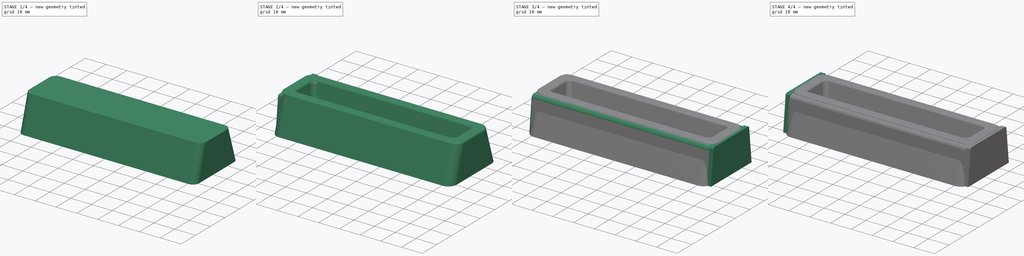
[diagram: build sequence overview — one tinted view per stage of 4, left to right]
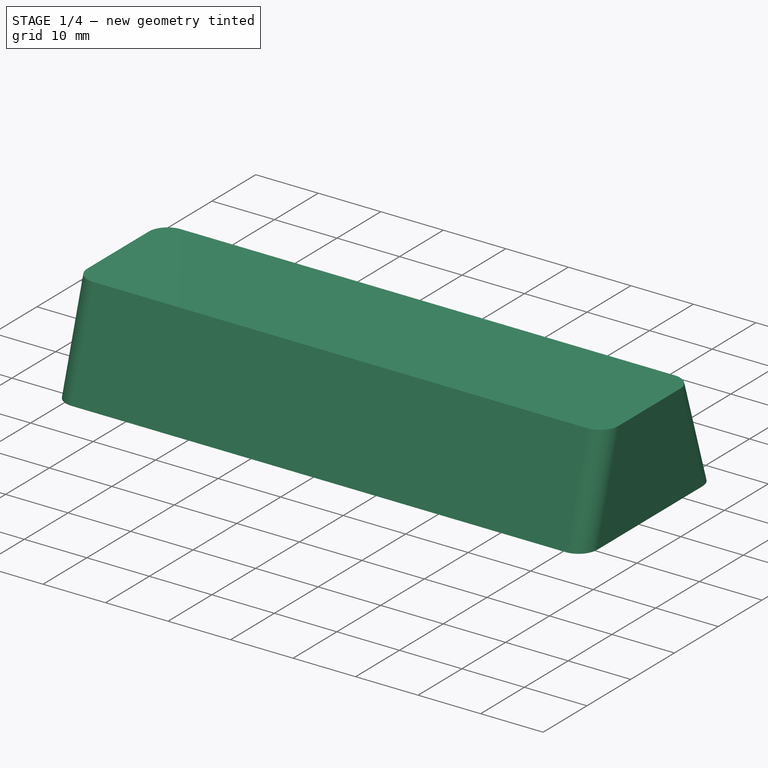
[diagram: stage 1 of 4 — iso view after this stage's code; geometry added in this stage tinted green]
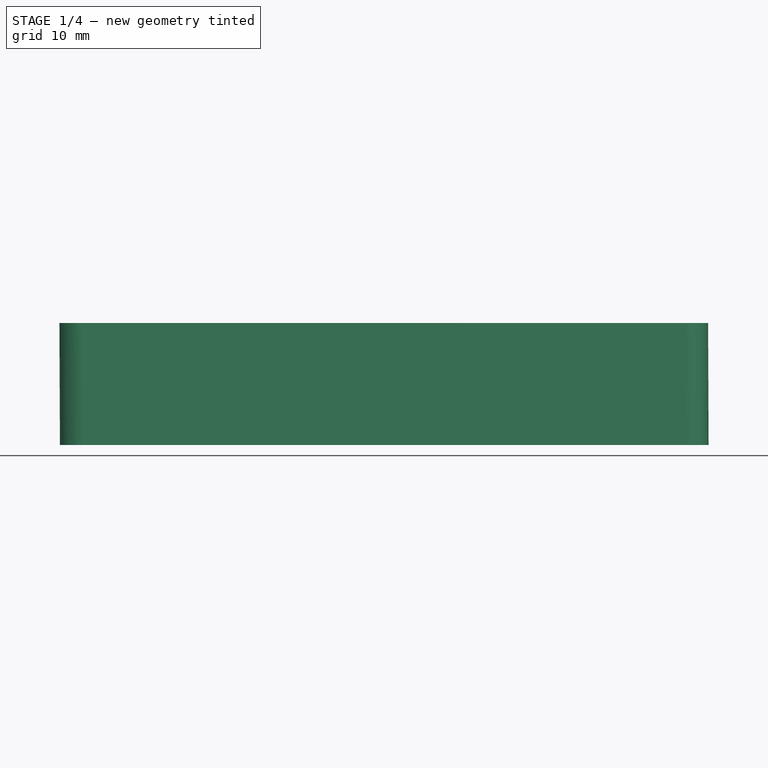
[diagram: stage 1 of 4 — front view after this stage's code; geometry added in this stage tinted green]
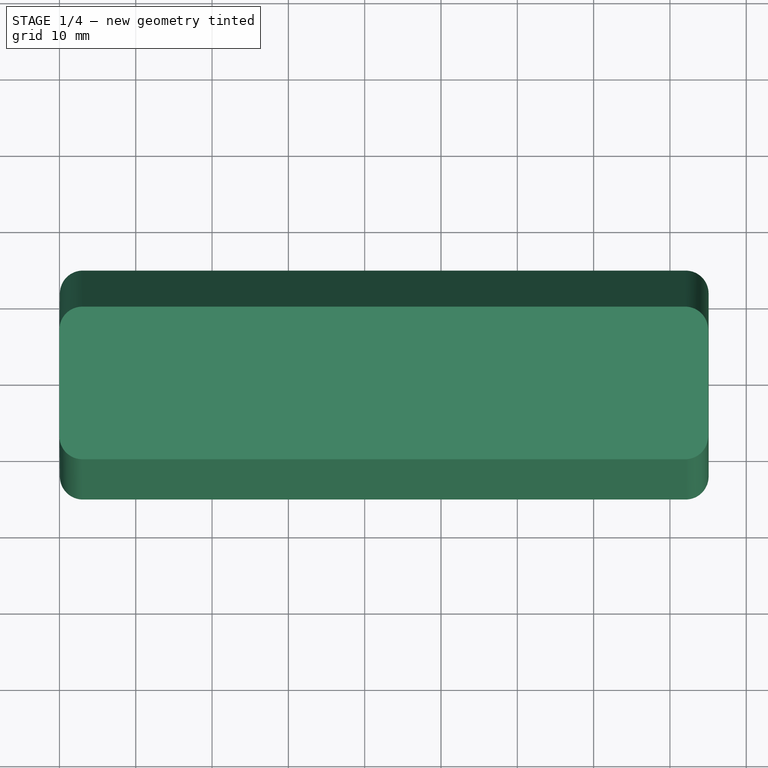
[diagram: stage 1 of 4 — top view after this stage's code; geometry added in this stage tinted green]
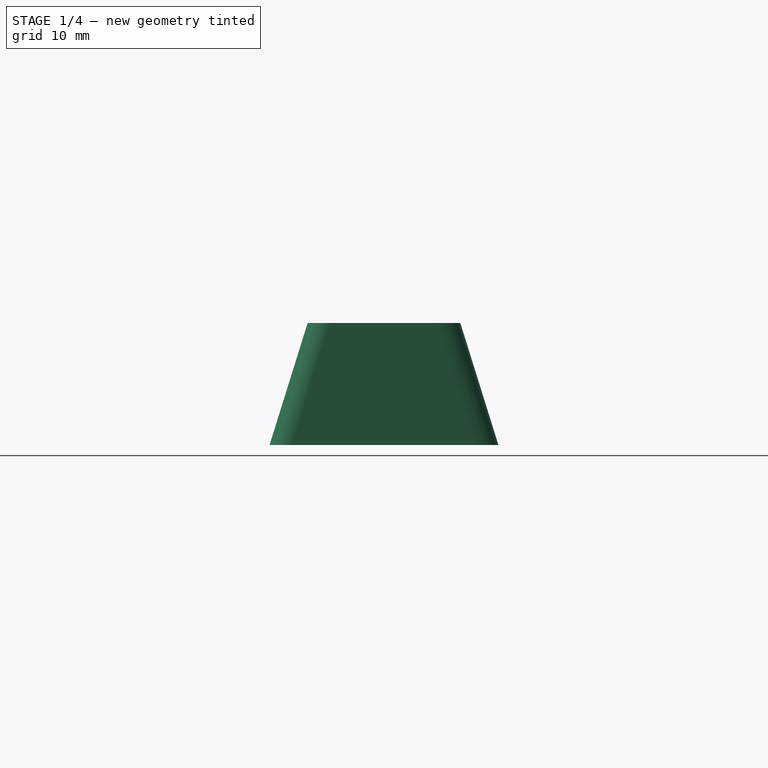
[diagram: stage 1 of 4 — right view after this stage's code; geometry added in this stage tinted green]
FCSTD DOCUMENT  (FreeCAD 0.20R29410 (Git))
Label: Trays
License: All rights reserved
LicenseURL: http://en.wikipedia.org/wiki/All_rights_reserved
objects: Sketcher::SketchObject×6, PartDesign::Body×4, PartDesign::Pad×2, Part::Thickness×2, PartDesign::AdditiveLoft×2, Part::Box×1, Part::FeaturePython×1, Part::Compound×1, TechDraw::DrawSVGTemplate×1, Part::Cut×1, TechDraw::DrawViewPart×1, TechDraw::DrawPage×1
note: 24 computed .brp shape members not serialized (recipe doc carries the construction recipe); baked Part::Feature solids carry a one-line shape summary decoded from their .brp

FEATURE [TechDraw::DrawSVGTemplate] Template
  Height = 210
  Orientation = 1
  Width = 297
FEATURE [Sketcher::SketchObject] Sketch002
  FullyConstrained = false
  MapMode = 5
  Support = -> [XY_Plane002]
  sketch-geometry (16):
    g0: LineSegment StartX=3.06449 StartY=-15 StartZ=0 EndX=82.0645 EndY=-15 EndZ=0
    g1: LineSegment StartX=85.0645 StartY=-12 StartZ=0 EndX=85.0645 EndY=12 EndZ=0
    g2: LineSegment StartX=82.0645 StartY=15 StartZ=0 EndX=3.06449 EndY=15 EndZ=0
    g3: LineSegment StartX=0.0644855 StartY=12 StartZ=0 EndX=0.0644855 EndY=-12 EndZ=0
    g4: ArcOfCircle CenterX=3.06449 CenterY=12 CenterZ=0 NormalX=0 NormalY=0 NormalZ=1 AngleXU=0 Radius=3 StartAngle=1.5708 EndAngle=3.14159
    g5: GeomPoint X=0.0644855 Y=15 Z=0
    g6: ArcOfCircle CenterX=82.0645 CenterY=12 CenterZ=0 NormalX=0 NormalY=0 NormalZ=1 AngleXU=0 Radius=3 StartAngle=0 EndAngle=1.5708
    g7: GeomPoint X=85.0645 Y=15 Z=0
    g8: ArcOfCircle CenterX=82.0645 CenterY=-12 CenterZ=0 NormalX=0 NormalY=0 NormalZ=1 AngleXU=0 Radius=3 StartAngle=4.71239 EndAngle=6.28319
    g9: GeomPoint X=85.0645 Y=-15 Z=0
    g10: ArcOfCircle CenterX=3.06449 CenterY=-12 CenterZ=0 NormalX=0 NormalY=0 NormalZ=1 AngleXU=0 Radius=3 StartAngle=3.14159 EndAngle=4.71239
    g11: GeomPoint X=0.0644855 Y=-15 Z=0
    g12: LineSegment StartX=3.06449 StartY=15 StartZ=0 EndX=0 EndY=15 EndZ=0
    g13: LineSegment StartX=3.06449 StartY=-15 StartZ=0 EndX=0 EndY=-15 EndZ=0
    g14: LineSegment StartX=0 StartY=-15 StartZ=0 EndX=0 EndY=0 EndZ=0
    g15: LineSegment StartX=0 StartY=0 StartZ=0 EndX=0 EndY=15 EndZ=0
  constraints (37):
    c: Horizontal(g0)
    c: Horizontal(g2)
    c: Vertical(g1)
    c: Vertical(g3)
    c: PointOnObject(g5,g3)
    c: PointOnObject(g5,g2)
    c: Tangent(g3,g4) = -1.5708
    c: Tangent(g2,g4) = -1.5708
    c: PointOnObject(g7,g2)
    c: PointOnObject(g7,g1)
    c: Tangent(g2,g6) = -1.5708
    c: Tangent(g1,g6) = -1.5708
    c: PointOnObject(g9,g1)
    c: PointOnObject(g9,g0)
    c: Tangent(g1,g8) = -1.5708
    c: Tangent(g0,g8) = -1.5708
    c: PointOnObject(g11,g0)
    c: PointOnObject(g11,g3)
    c: Tangent(g0,g10) = -1.5708
    c: Tangent(g3,g10) = -1.5708
    c: Equal(g10,g4)
    c: Equal(g4,g6)
    c: Equal(g6,g8)
    c: DistanceX(g3,g1) = 85
    c: Coincident(g12,g2)
    c: PointOnObject(g12,g-2)
    c: Horizontal(g12)
    c: Coincident(g13,g0)
    c: PointOnObject(g13,g-2)
    c: Tangent(g13,g10)
    c: Coincident(g14,g13)
    c: Coincident(g14,g-1)
    c: Coincident(g15,g14)
    c: Coincident(g15,g12)
    c: Equal(g15,g14)
    c: Radius(g4) = 3
    c: DistanceY(g0,g2) = 30
FEATURE [Sketcher::SketchObject] Sketch003
  AttachmentOffset = pos=(0,0,16) rot=(0,0,1;0rad)
  FullyConstrained = true
  MapMode = 5
  Placement = pos=(0,0,16) rot=(0,0,1;0rad)
  Support = -> [XY_Plane002]
  sketch-geometry (14):
    g0: LineSegment StartX=3 StartY=10 StartZ=0 EndX=82 EndY=10 EndZ=0
    g1: LineSegment StartX=85 StartY=7 StartZ=0 EndX=85 EndY=-7 EndZ=0
    g2: LineSegment StartX=82 StartY=-10 StartZ=0 EndX=3 EndY=-10 EndZ=0
    g3: LineSegment StartX=0 StartY=-7 StartZ=0 EndX=0 EndY=7 EndZ=0
    g4: LineSegment StartX=0 StartY=0 StartZ=0 EndX=0 EndY=10 EndZ=0
    g5: LineSegment StartX=0 StartY=0 StartZ=0 EndX=0 EndY=-10 EndZ=0
    g6: ArcOfCircle CenterX=3 CenterY=7 CenterZ=0 NormalX=0 NormalY=0 NormalZ=1 AngleXU=0 Radius=3 StartAngle=1.5708 EndAngle=3.14159
    g7: GeomPoint X=0 Y=10 Z=0
    g8: ArcOfCircle CenterX=82 CenterY=7 CenterZ=0 NormalX=0 NormalY=0 NormalZ=1 AngleXU=0 Radius=3 StartAngle=0 EndAngle=1.5708
    g9: GeomPoint X=85 Y=10 Z=0
    g10: ArcOfCircle CenterX=82 CenterY=-7 CenterZ=0 NormalX=0 NormalY=0 NormalZ=1 AngleXU=0 Radius=3 StartAngle=4.71239 EndAngle=6.28319
    g11: GeomPoint X=85 Y=-10 Z=0
    g12: ArcOfCircle CenterX=3 CenterY=-7 CenterZ=0 NormalX=0 NormalY=0 NormalZ=1 AngleXU=0 Radius=3 StartAngle=3.14159 EndAngle=4.71239
    g13: GeomPoint X=0 Y=-10 Z=0
  constraints (32):
    c: Horizontal(g0)
    c: Horizontal(g2)
    c: Vertical(g1)
    c: Vertical(g3)
    c: PointOnObject(g7,g-2)
    c: Coincident(g4,g-1)
    c: Coincident(g4,g7)
    c: Coincident(g5,g4)
    c: Coincident(g5,g13)
    c: DistanceY(g13,g4) = 10
    c: DistanceY(g4,g7) = 10
    c: DistanceX(g7,g9) = 85
    c: PointOnObject(g7,g3)
    c: PointOnObject(g7,g0)
    c: Tangent(g3,g6) = 1.5708
    c: Tangent(g0,g6) = 1.5708
    c: PointOnObject(g9,g0)
    c: PointOnObject(g9,g1)
    c: Tangent(g0,g8) = 1.5708
    c: Tangent(g1,g8) = 1.5708
    c: PointOnObject(g11,g1)
    c: PointOnObject(g11,g2)
    c: Tangent(g1,g10) = 1.5708
    c: Tangent(g2,g10) = 1.5708
    c: PointOnObject(g13,g2)
    c: PointOnObject(g13,g3)
    c: Tangent(g2,g12) = 1.5708
    c: Tangent(g3,g12) = 1.5708
    c: Equal(g12,g6)
    c: Equal(g6,g8)
    c: Equal(g8,g10)
    c: Radius(g6) = 3
FEATURE [PartDesign::AdditiveLoft] AdditiveLoft
  Closed = false
  Profile = -> Sketch002
  Ruled = false
  Sections = -> [Sketch003]
FEATURE [PartDesign::Body] Body002  label="Tray body"
  Group = -> [Sketch002,Sketch003,AdditiveLoft]
  Origin = -> Origin002
  Tip = -> AdditiveLoft
FEATURE [Sketcher::SketchObject] Sketch004
  AttachmentOffset = pos=(0,0,16) rot=(0,0,1;0rad)
  FullyConstrained = true
  MapMode = 5
  Placement = pos=(0,0,16) rot=(0,0,1;0rad)
  Support = -> [XY_Plane003]
  sketch-geometry (16):
    g0: LineSegment StartX=6 StartY=7.5 StartZ=0 EndX=79 EndY=7.5 EndZ=0
    g1: LineSegment StartX=82 StartY=4.5 StartZ=0 EndX=82 EndY=-4.5 EndZ=0
    g2: LineSegment StartX=79 StartY=-7.5 StartZ=0 EndX=6 EndY=-7.5 EndZ=0
    g3: LineSegment StartX=3 StartY=-4.5 StartZ=0 EndX=3 EndY=4.5 EndZ=0
    g4: LineSegment StartX=0 StartY=0 StartZ=0 EndX=0 EndY=7.5 EndZ=0
    g5: LineSegment StartX=0 StartY=0 StartZ=0 EndX=0 EndY=-7.5 EndZ=0
    g6: LineSegment StartX=3 StartY=-7.5 StartZ=0 EndX=0 EndY=-7.5 EndZ=0
    g7: LineSegment StartX=3 StartY=7.5 StartZ=0 EndX=0 EndY=7.5 EndZ=0
    g8: ArcOfCircle CenterX=6 CenterY=4.5 CenterZ=0 NormalX=0 NormalY=0 NormalZ=1 AngleXU=0 Radius=3 StartAngle=1.5708 EndAngle=3.14159
    g9: GeomPoint X=3 Y=7.5 Z=0
    g10: ArcOfCircle CenterX=6 CenterY=-4.5 CenterZ=0 NormalX=0 NormalY=0 NormalZ=1 AngleXU=0 Radius=3 StartAngle=3.14159 EndAngle=4.71239
    g11: GeomPoint X=3 Y=-7.5 Z=0
    g12: ArcOfCircle CenterX=79 CenterY=-4.5 CenterZ=0 NormalX=0 NormalY=0 NormalZ=1 AngleXU=0 Radius=3 StartAngle=4.71239 EndAngle=6.28319
    g13: GeomPoint X=82 Y=-7.5 Z=0
    g14: ArcOfCircle CenterX=79 CenterY=4.5 CenterZ=0 NormalX=0 NormalY=0 NormalZ=1 AngleXU=0 Radius=3 StartAngle=0 EndAngle=1.5708
    g15: GeomPoint X=82 Y=7.5 Z=0
  constraints (38):
    c: Horizontal(g0)
    c: Horizontal(g2)
    c: Vertical(g1)
    c: Vertical(g3)
    c: Coincident(g4,g-1)
    c: PointOnObject(g4,g-2)
    c: Coincident(g5,g4)
    c: PointOnObject(g5,g-2)
    c: Coincident(g6,g11)
    c: Coincident(g6,g5)
    c: Horizontal(g6)
    c: Coincident(g7,g9)
    c: Coincident(g7,g4)
    c: Horizontal(g7)
    c: Equal(g4,g5)
    c: DistanceX(g7,g7) = 3
    c: DistanceX(g9,g15) = 79
    c: PointOnObject(g9,g3)
    c: PointOnObject(g9,g0)
    c: Tangent(g3,g8) = 1.5708
    c: Tangent(g0,g8) = 1.5708
    c: PointOnObject(g11,g2)
    c: PointOnObject(g11,g3)
    c: Tangent(g2,g10) = 1.5708
    c: Tangent(g3,g10) = 1.5708
    c: PointOnObject(g13,g2)
    c: PointOnObject(g13,g1)
    c: Tangent(g2,g12) = 1.5708
    c: Tangent(g1,g12) = 1.5708
    c: PointOnObject(g15,g1)
    c: PointOnObject(g15,g0)
    c: Tangent(g1,g14) = 1.5708
    c: Tangent(g0,g14) = 1.5708
    c: Equal(g8,g14)
    c: Equal(g14,g12)
    c: Equal(g12,g10)
    c: Radius(g8) = 3
    c: DistanceY(g5,g4) = 15
FEATURE [Sketcher::SketchObject] Sketch005
  AttachmentOffset = pos=(0,0,4) rot=(0,0,1;0rad)
  FullyConstrained = false
  MapMode = 5
  Placement = pos=(0,0,4) rot=(0,0,1;0rad)
  Support = -> [XY_Plane003]
  sketch-geometry (16):
    g0: LineSegment StartX=8 StartY=4.5 StartZ=0 EndX=77.7539 EndY=4.5 EndZ=0
    g1: LineSegment StartX=80 StartY=2.25388 StartZ=0 EndX=80 EndY=-2.29026 EndZ=0
    g2: LineSegment StartX=77.7903 StartY=-4.5 StartZ=0 EndX=8 EndY=-4.5 EndZ=0
    g3: LineSegment StartX=5 StartY=-1.5 StartZ=0 EndX=5 EndY=1.5 EndZ=0
    g4: LineSegment StartX=5 StartY=4.5 StartZ=0 EndX=0 EndY=4.5 EndZ=0
    g5: LineSegment StartX=5 StartY=-4.5 StartZ=0 EndX=0 EndY=-4.5 EndZ=0
    g6: LineSegment StartX=0 StartY=-4.5 StartZ=0 EndX=0 EndY=0 EndZ=0
    g7: LineSegment StartX=0 StartY=4.5 StartZ=0 EndX=0 EndY=0 EndZ=0
    g8: ArcOfCircle CenterX=8 CenterY=1.5 CenterZ=0 NormalX=0 NormalY=0 NormalZ=1 AngleXU=0 Radius=3 StartAngle=1.5708 EndAngle=3.14159
    g9: GeomPoint X=5 Y=4.5 Z=0
    g10: ArcOfCircle CenterX=8 CenterY=-1.5 CenterZ=0 NormalX=0 NormalY=0 NormalZ=1 AngleXU=0 Radius=3 StartAngle=3.14159 EndAngle=4.71239
    g11: GeomPoint X=5 Y=-4.5 Z=0
    g12: ArcOfCircle CenterX=77.7903 CenterY=-2.29026 CenterZ=0 NormalX=0 NormalY=0 NormalZ=1 AngleXU=0 Radius=2.20974 StartAngle=4.71239 EndAngle=6.28319
    g13: GeomPoint X=80 Y=-4.5 Z=0
    g14: ArcOfCircle CenterX=77.7539 CenterY=2.25388 CenterZ=0 NormalX=0 NormalY=0 NormalZ=1 AngleXU=0 Radius=2.24612 StartAngle=0 EndAngle=1.5708
    g15: GeomPoint X=80 Y=4.5 Z=0
  constraints (36):
    c: Horizontal(g0)
    c: Horizontal(g2)
    c: Vertical(g1)
    c: Vertical(g3)
    c: Coincident(g4,g9)
    c: PointOnObject(g4,g-2)
    c: Horizontal(g4)
    c: Coincident(g5,g11)
    c: PointOnObject(g5,g-2)
    c: Horizontal(g5)
    c: Coincident(g6,g5)
    c: Coincident(g6,g-1)
    c: Coincident(g7,g4)
    c: Coincident(g7,g6)
    c: Equal(g7,g6)
    c: DistanceY(g5,g4) = 9
    c: PointOnObject(g9,g3)
    c: PointOnObject(g9,g0)
    c: Tangent(g3,g8) = 1.5708
    c: Tangent(g0,g8) = 1.5708
    c: PointOnObject(g11,g2)
    c: PointOnObject(g11,g3)
    c: Tangent(g2,g10) = 1.5708
    c: Tangent(g3,g10) = 1.5708
    c: PointOnObject(g13,g2)
    c: PointOnObject(g13,g1)
    c: Tangent(g2,g12) = 1.5708
    c: Tangent(g1,g12) = 1.5708
    c: PointOnObject(g15,g1)
    c: PointOnObject(g15,g0)
    c: Tangent(g1,g14) = 1.5708
    c: Tangent(g0,g14) = 1.5708
    c: Equal(g10,g8)
    c: Radius(g10) = 3
    c: DistanceX(g4,g4) = 5
    c: DistanceX(g4,g15) = 75
FEATURE [PartDesign::AdditiveLoft] AdditiveLoft001
  Closed = false
  Profile = -> Sketch004
  Ruled = false
  Sections = -> [Sketch005]
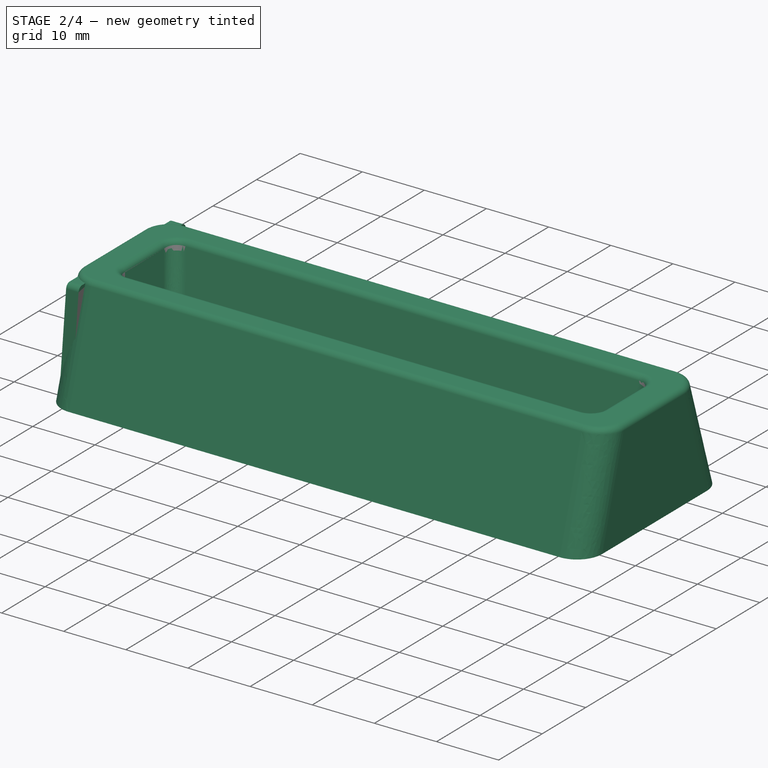
[diagram: stage 2 of 4 — iso view after this stage's code; geometry added in this stage tinted green]
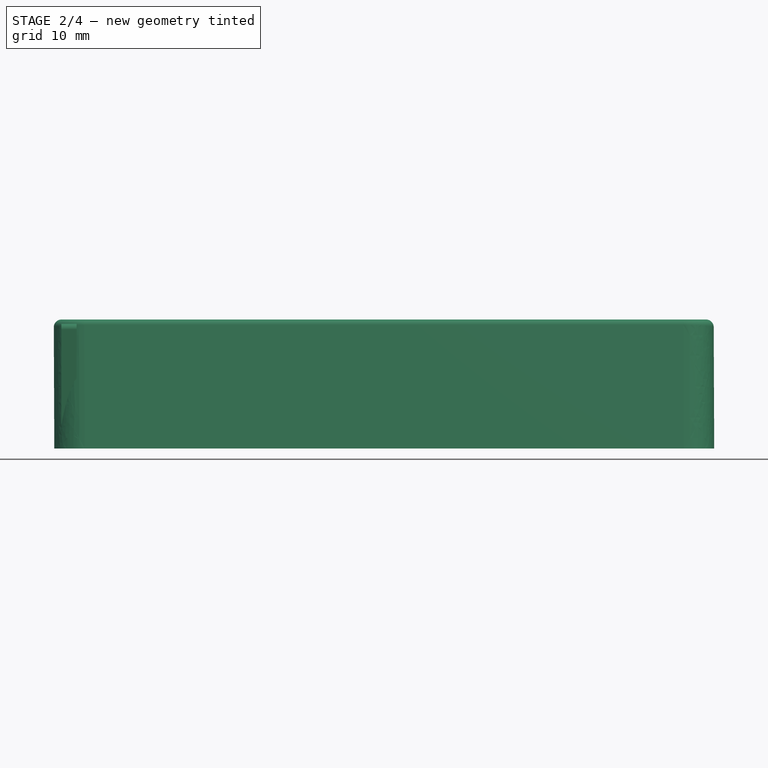
[diagram: stage 2 of 4 — front view after this stage's code; geometry added in this stage tinted green]
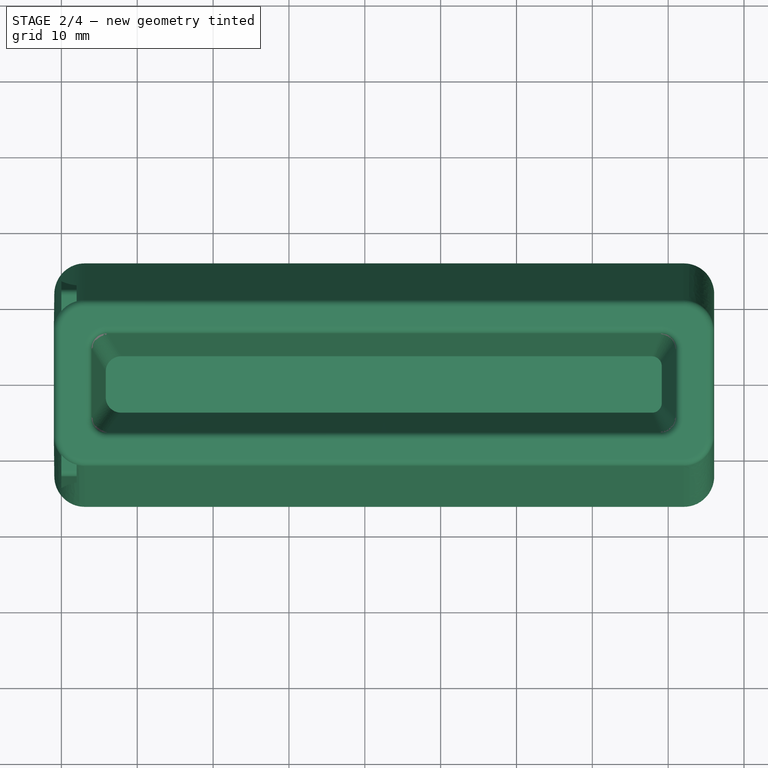
[diagram: stage 2 of 4 — top view after this stage's code; geometry added in this stage tinted green]
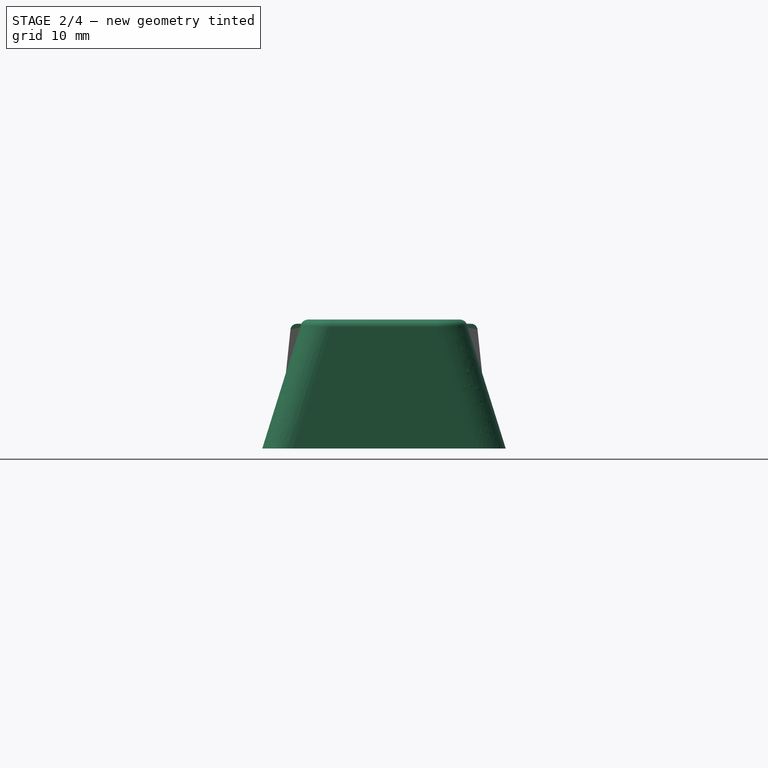
[diagram: stage 2 of 4 — right view after this stage's code; geometry added in this stage tinted green]
FEATURE [Sketcher::SketchObject] Sketch001
  FullyConstrained = false
  MapMode = 5
  Placement = pos=(0,0,0) rot=(0.57735,0.57735,0.57735;2.0944rad)
  Support = -> [YZ_Plane001]
  sketch-geometry (28):
    g0: LineSegment StartX=13.9783 StartY=0 StartZ=0 EndX=12.3299 EndY=15.6832 EndZ=0
    g1: LineSegment StartX=11.494 StartY=16.4358 StartZ=0 EndX=8.73119 EndY=16.4358 EndZ=0
    g2: LineSegment StartX=7.8995 StartY=15.7166 StartZ=0 EndX=6.38874 EndY=5.35616 EndZ=0
    g3: LineSegment StartX=-6.38874 StartY=5.35616 StartZ=0 EndX=-7.8995 EndY=15.7166 EndZ=0
    g4: LineSegment StartX=-8.73119 StartY=16.4358 StartZ=0 EndX=-11.494 EndY=16.4358 EndZ=0
    g5: LineSegment StartX=-12.3299 StartY=15.6832 StartZ=0 EndX=-13.9783 EndY=0 EndZ=0
    g6: LineSegment StartX=13.9783 StartY=0 StartZ=0 EndX=0 EndY=0 EndZ=0
    g7: LineSegment StartX=0 StartY=0 StartZ=0 EndX=-13.9783 EndY=0 EndZ=0
    g8: LineSegment StartX=6.38874 StartY=5.35616 StartZ=0 EndX=0 EndY=5.35616 EndZ=0
    g9: LineSegment StartX=0 StartY=5.35616 StartZ=0 EndX=-6.38874 EndY=5.35616 EndZ=0
    g10: LineSegment StartX=6.38874 StartY=5.35616 StartZ=0 EndX=2.75686 EndY=1.6523 EndZ=0
    g11: LineSegment StartX=2.75686 StartY=1.6523 StartZ=0 EndX=0 EndY=1.30065 EndZ=0
    g12: LineSegment StartX=0 StartY=1.30065 StartZ=0 EndX=-2.71834 EndY=1.87905 EndZ=0
    g13: LineSegment StartX=-2.71834 StartY=1.87905 StartZ=0 EndX=-6.38874 EndY=5.35616 EndZ=0
    g14: ArcOfCircle CenterX=-11.494 CenterY=15.5953 CenterZ=0 NormalX=0 NormalY=0 NormalZ=1 AngleXU=0 Radius=0.84049 StartAngle=1.5708 EndAngle=3.03687
    g15: GeomPoint X=-12.2508 Y=16.4358 Z=0
    g16: ArcOfCircle CenterX=-8.73119 CenterY=15.5953 CenterZ=0 NormalX=0 NormalY=0 NormalZ=1 AngleXU=0 Radius=0.84049 StartAngle=0.1448 EndAngle=1.5708
    g17: GeomPoint X=-8.00437 Y=16.4358 Z=0
    g18: ArcOfCircle CenterX=8.73119 CenterY=15.5953 CenterZ=0 NormalX=0 NormalY=0 NormalZ=1 AngleXU=0 Radius=0.84049 StartAngle=1.5708 EndAngle=2.99679
    g19: GeomPoint X=8.00437 Y=16.4358 Z=0
    g20: ArcOfCircle CenterX=11.494 CenterY=15.5953 CenterZ=0 NormalX=0 NormalY=0 NormalZ=1 AngleXU=0 Radius=0.84049 StartAngle=0.10472 EndAngle=1.5708
    g21: GeomPoint X=12.2508 Y=16.4358 Z=0
    g22: LineSegment StartX=-8.00437 StartY=16.4358 StartZ=0 EndX=-12.2508 EndY=16.4358 EndZ=0
    g23: LineSegment StartX=8.00437 StartY=16.4358 StartZ=0 EndX=12.2508 EndY=16.4358 EndZ=0
    g24: LineSegment StartX=8.00437 StartY=16.4358 StartZ=0 EndX=0 EndY=16.4358 EndZ=0
    g25: LineSegment StartX=0 StartY=16.4358 StartZ=0 EndX=-8.00437 EndY=16.4358 EndZ=0
    g26: LineSegment StartX=8.73119 StartY=16.4358 StartZ=0 EndX=-8.73119 EndY=16.4358 EndZ=0
    g27: LineSegment StartX=8.73119 StartY=16.4358 StartZ=0 EndX=-8.73119 EndY=16.4358 EndZ=0
  constraints (59):
    c: PointOnObject(g5,g-1)
    c: PointOnObject(g0,g-1)
    c: Horizontal(g4)
    c: Coincident(g6,g0)
    c: Coincident(g6,g-1)
    c: Coincident(g7,g6)
    c: Coincident(g7,g5)
    c: Equal(g7,g6)
    c: Angle(g0,g6) = 1.46608
    c: Horizontal(g1)
    c: Coincident(g8,g2)
    c: PointOnObject(g8,g-2)
    c: Horizontal(g8)
    c: Coincident(g9,g8)
    c: Coincident(g9,g3)
    c: Horizontal(g9)
    c: Equal(g9,g8)
    c: Coincident(g10,g2)
    c: Coincident(g11,g10)
    c: PointOnObject(g11,g-2)
    c: Coincident(g12,g11)
    c: Coincident(g13,g12)
    c: Coincident(g13,g3)
    c: Equal(g12,g11)
    c: PointOnObject(g15,g5)
    c: PointOnObject(g15,g4)
    c: Tangent(g5,g14) = -1.5708
    c: Tangent(g4,g14) = -1.5708
    c: PointOnObject(g17,g4)
    c: PointOnObject(g17,g3)
    c: Tangent(g4,g16) = -1.5708
    c: Tangent(g3,g16) = -1.5708
    c: PointOnObject(g19,g2)
    c: PointOnObject(g19,g1)
    c: Tangent(g2,g18) = -1.5708
    c: Tangent(g1,g18) = -1.5708
    c: PointOnObject(g21,g1)
    c: PointOnObject(g21,g0)
    c: Tangent(g1,g20) = -1.5708
    c: Tangent(g0,g20) = -1.5708
    c: Equal(g16,g14)
    c: Equal(g14,g20)
    c: Equal(g20,g18)
    c: Coincident(g22,g17)
    c: Coincident(g22,g15)
    c: Coincident(g23,g19)
    c: Coincident(g21,g23)
    c: Equal(g23,g22)
    c: Coincident(g24,g19)
    c: PointOnObject(g24,g-2)
    c: Horizontal(g24)
    c: Coincident(g25,g24)
    c: Coincident(g25,g17)
    c: Horizontal(g25)
    c: Equal(g24,g25)
    c: Coincident(g26,g1)
    c: Coincident(g26,g4)
    c: Coincident(g27,g1)
    c: Coincident(g27,g4)
FEATURE [PartDesign::Pad] Pad001
  Direction = (1,-2e-16,3e-16)
  Length = 2
  Length2 = 10
  Placement = pos=(0,0,0) rot=(0.57735,0.57735,0.57735;2.0944rad)
  Profile = -> Sketch001
  ReferenceAxis = -> Sketch001 [N_Axis]
  Type = 0
FEATURE [PartDesign::Body] Body003  label="Wedge"
  Group = -> [Sketch004,Sketch005,AdditiveLoft001]
  Origin = -> Origin003
  Tip = -> AdditiveLoft001
FEATURE [Part::Cut] Cut
  Base = -> Body002
  Tool = -> Body003
FEATURE [Part::Thickness] Thickness001  label="Tray"
  Faces = -> Cut [Face1]
  Intersection = false
  Join = 0
  Mode = 0
  SelfIntersection = false
  Value = 1
FEATURE [TechDraw::DrawViewPart] View001
  CoarseView = false
  Direction = (0.577,-0.577,0.577)
  Focus = 100
  HardHidden = false
  IsoCount = 0
  IsoHidden = false
  IsoVisible = false
  LockPosition = false
  Perspective = false
  Rotation = 0
  ScaleType = 0
  SeamHidden = false
  SeamVisible = true
  SmoothHidden = false
  SmoothVisible = true
  Source = -> [Thickness001]
  X = 95.2021
  XDirection = (0.707,0.707,0)
  Y = 123.191
FEATURE [TechDraw::DrawPage] Page
  KeepUpdated = true
  NextBalloonIndex = 1
  ProjectionType = 0
  Template = -> Template
  Views = -> [View001]
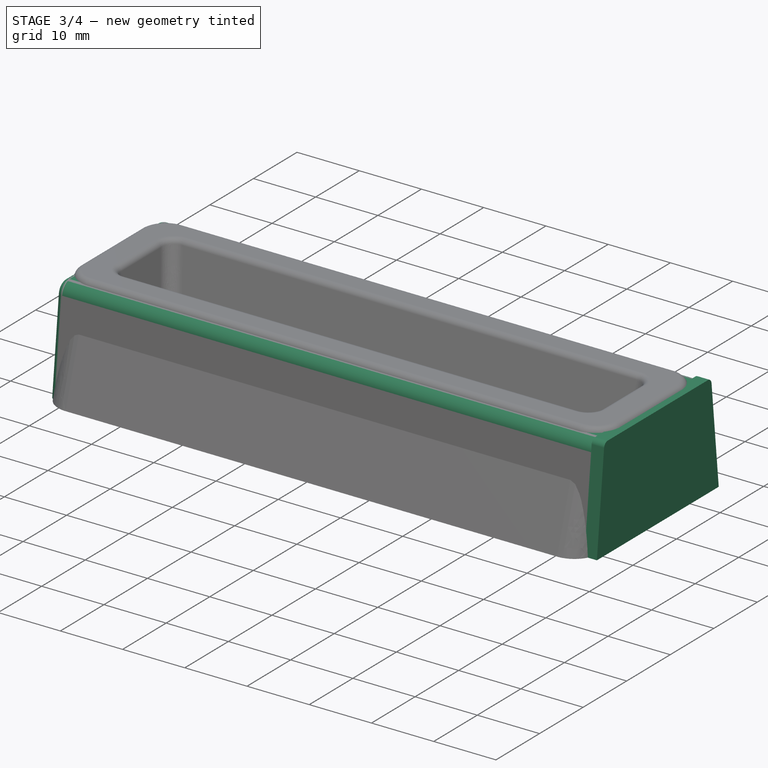
[diagram: stage 3 of 4 — iso view after this stage's code; geometry added in this stage tinted green]
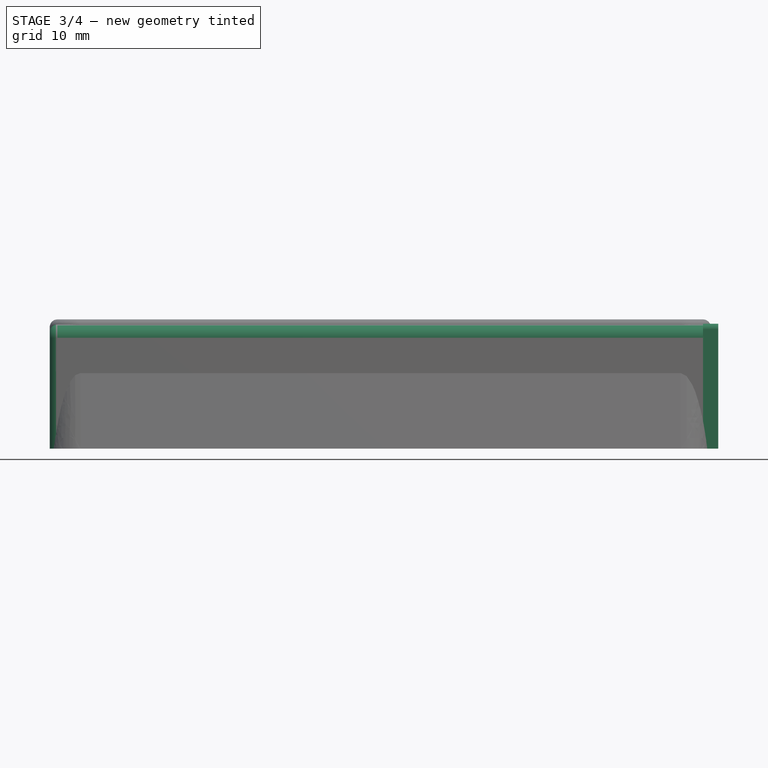
[diagram: stage 3 of 4 — front view after this stage's code; geometry added in this stage tinted green]
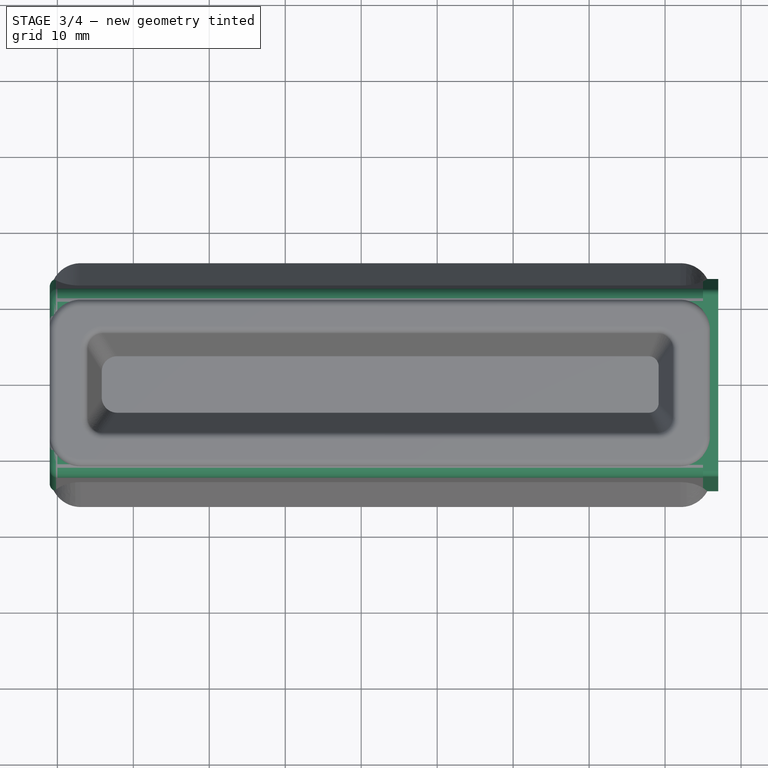
[diagram: stage 3 of 4 — top view after this stage's code; geometry added in this stage tinted green]
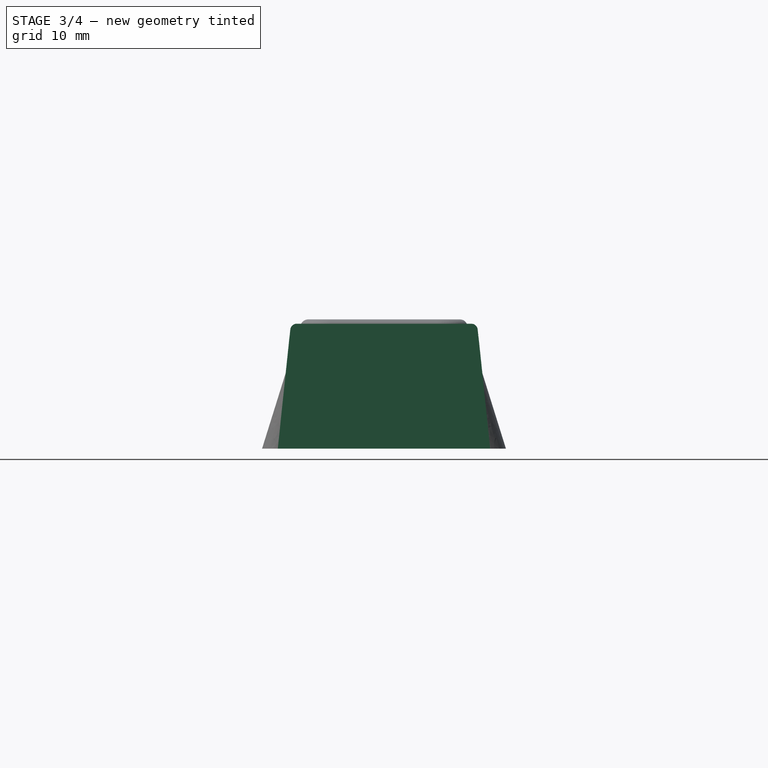
[diagram: stage 3 of 4 — right view after this stage's code; geometry added in this stage tinted green]
FEATURE [Sketcher::SketchObject] Sketch
  FullyConstrained = false
  MapMode = 5
  Placement = pos=(0,0,0) rot=(0.57735,0.57735,0.57735;2.0944rad)
  Support = -> [YZ_Plane]
  sketch-geometry (26):
    g0: LineSegment StartX=12.9809 StartY=0 StartZ=0 EndX=11.4594 EndY=14.4757 EndZ=0
    g1: LineSegment StartX=10.5044 StartY=15.3356 StartZ=0 EndX=8.81062 EndY=15.3356 EndZ=0
    g2: LineSegment StartX=7.86472 StartY=14.5407 StartZ=0 EndX=6.26531 EndY=5.39512 EndZ=0
    g3: LineSegment StartX=-6.26531 StartY=5.39512 StartZ=0 EndX=-7.86472 EndY=14.5407 EndZ=0
    g4: LineSegment StartX=-8.81062 StartY=15.3356 StartZ=0 EndX=-10.5044 EndY=15.3356 EndZ=0
    g5: LineSegment StartX=-11.4594 StartY=14.4757 StartZ=0 EndX=-12.9809 EndY=0 EndZ=0
    g6: LineSegment StartX=12.9809 StartY=0 StartZ=0 EndX=0 EndY=0 EndZ=0
    g7: LineSegment StartX=0 StartY=0 StartZ=0 EndX=-12.9809 EndY=0 EndZ=0
    g8: LineSegment StartX=6.26531 StartY=5.39512 StartZ=0 EndX=0 EndY=5.39512 EndZ=0
    g9: LineSegment StartX=0 StartY=5.39512 StartZ=0 EndX=-6.26531 EndY=5.39512 EndZ=0
    g10: LineSegment StartX=6.26531 StartY=5.39512 StartZ=0 EndX=2.75686 EndY=1.6523 EndZ=0
    g11: LineSegment StartX=2.75686 StartY=1.6523 StartZ=0 EndX=0 EndY=1.30065 EndZ=0
    g12: LineSegment StartX=0 StartY=1.30065 StartZ=0 EndX=-2.71834 EndY=1.87905 EndZ=0
    g13: LineSegment StartX=-2.71834 StartY=1.87905 StartZ=0 EndX=-6.26531 EndY=5.39512 EndZ=0
    g14: ArcOfCircle CenterX=-10.5044 CenterY=14.3753 CenterZ=0 NormalX=0 NormalY=0 NormalZ=1 AngleXU=0 Radius=0.96025 StartAngle=1.5708 EndAngle=3.03687
    g15: GeomPoint X=-11.369 Y=15.3356 Z=0
    g16: ArcOfCircle CenterX=-8.81062 CenterY=14.3753 CenterZ=0 NormalX=0 NormalY=0 NormalZ=1 AngleXU=0 Radius=0.96025 StartAngle=0.173132 EndAngle=1.5708
    g17: GeomPoint X=-8.00373 Y=15.3356 Z=0
    g18: ArcOfCircle CenterX=8.81062 CenterY=14.3753 CenterZ=0 NormalX=0 NormalY=0 NormalZ=1 AngleXU=0 Radius=0.96025 StartAngle=1.5708 EndAngle=2.96846
    g19: GeomPoint X=8.00373 Y=15.3356 Z=0
    g20: ArcOfCircle CenterX=10.5044 CenterY=14.3753 CenterZ=0 NormalX=0 NormalY=0 NormalZ=1 AngleXU=0 Radius=0.96025 StartAngle=0.10472 EndAngle=1.5708
    g21: GeomPoint X=11.369 Y=15.3356 Z=0
    g22: LineSegment StartX=-8.00373 StartY=15.3356 StartZ=0 EndX=-11.369 EndY=15.3356 EndZ=0
    g23: LineSegment StartX=8.00373 StartY=15.3356 StartZ=0 EndX=11.369 EndY=15.3356 EndZ=0
    g24: LineSegment StartX=8.00373 StartY=15.3356 StartZ=0 EndX=0 EndY=15.3356 EndZ=0
    g25: LineSegment StartX=0 StartY=15.3356 StartZ=0 EndX=-8.00373 EndY=15.3356 EndZ=0
  constraints (55):
    c: PointOnObject(g5,g-1)
    c: PointOnObject(g0,g-1)
    c: Horizontal(g4)
    c: Coincident(g6,g0)
    c: Coincident(g6,g-1)
    c: Coincident(g7,g6)
    c: Coincident(g7,g5)
    c: Equal(g7,g6)
    c: Angle(g0,g6) = 1.46608
    c: Horizontal(g1)
    c: Coincident(g8,g2)
    c: PointOnObject(g8,g-2)
    c: Horizontal(g8)
    c: Coincident(g9,g8)
    c: Coincident(g9,g3)
    c: Horizontal(g9)
    c: Equal(g9,g8)
    c: Coincident(g10,g2)
    c: Coincident(g11,g10)
    c: PointOnObject(g11,g-2)
    c: Coincident(g12,g11)
    c: Coincident(g13,g12)
    c: Coincident(g13,g3)
    c: Equal(g12,g11)
    c: PointOnObject(g15,g5)
    c: PointOnObject(g15,g4)
    c: Tangent(g5,g14) = -1.5708
    c: Tangent(g4,g14) = -1.5708
    c: PointOnObject(g17,g4)
    c: PointOnObject(g17,g3)
    c: Tangent(g4,g16) = -1.5708
    c: Tangent(g3,g16) = -1.5708
    c: PointOnObject(g19,g2)
    c: PointOnObject(g19,g1)
    c: Tangent(g2,g18) = -1.5708
    c: Tangent(g1,g18) = -1.5708
    c: PointOnObject(g21,g1)
    c: PointOnObject(g21,g0)
    c: Tangent(g1,g20) = -1.5708
    c: Tangent(g0,g20) = -1.5708
    c: Equal(g16,g14)
    c: Equal(g14,g20)
    c: Equal(g20,g18)
    c: Coincident(g22,g17)
    c: Coincident(g22,g15)
    c: Coincident(g23,g19)
    c: Coincident(g21,g23)
    c: Equal(g23,g22)
    c: Coincident(g24,g19)
    c: PointOnObject(g24,g-2)
    c: Horizontal(g24)
    c: Coincident(g25,g24)
    c: Coincident(g25,g17)
    c: Horizontal(g25)
    c: Equal(g24,g25)
FEATURE [PartDesign::Pad] Pad
  Direction = (1,-2e-16,3e-16)
  Length = 85
  Length2 = 10
  Placement = pos=(0,0,0) rot=(0.57735,0.57735,0.57735;2.0944rad)
  Profile = -> Sketch
  ReferenceAxis = -> Sketch [N_Axis]
  Type = 0
FEATURE [PartDesign::Body] Body
  Group = -> [Sketch,Pad]
  Origin = -> Origin
  Tip = -> Pad
FEATURE [Part::Thickness] Thickness
  Faces = -> Pad [Face1,Face16]
  Intersection = false
  Join = 0
  Mode = 0
  SelfIntersection = false
  Value = 1
FEATURE [PartDesign::Body] Body001
  Group = -> [Sketch001,Pad001]
  Origin = -> Origin001
  Placement = pos=(-2,0,0) rot=(0,0,1;0rad)
  Tip = -> Pad001
FEATURE [Part::FeaturePython] Clone  label="Body002"  # Draft clone (typed FeaturePython)
  AttacherType = Attacher::AttachEngine3D
  Fuse = false
  Objects = -> [Body001]
  Placement = pos=(85,0,0) rot=(0,0,1;0rad)
  Scale = (1,1,1)
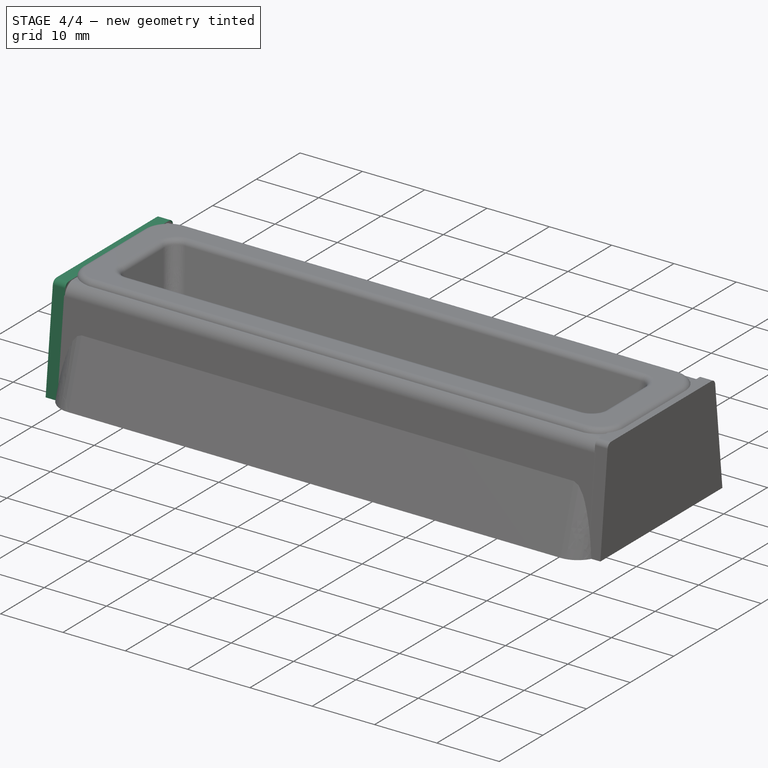
[diagram: stage 4 of 4 — iso view after this stage's code; geometry added in this stage tinted green]
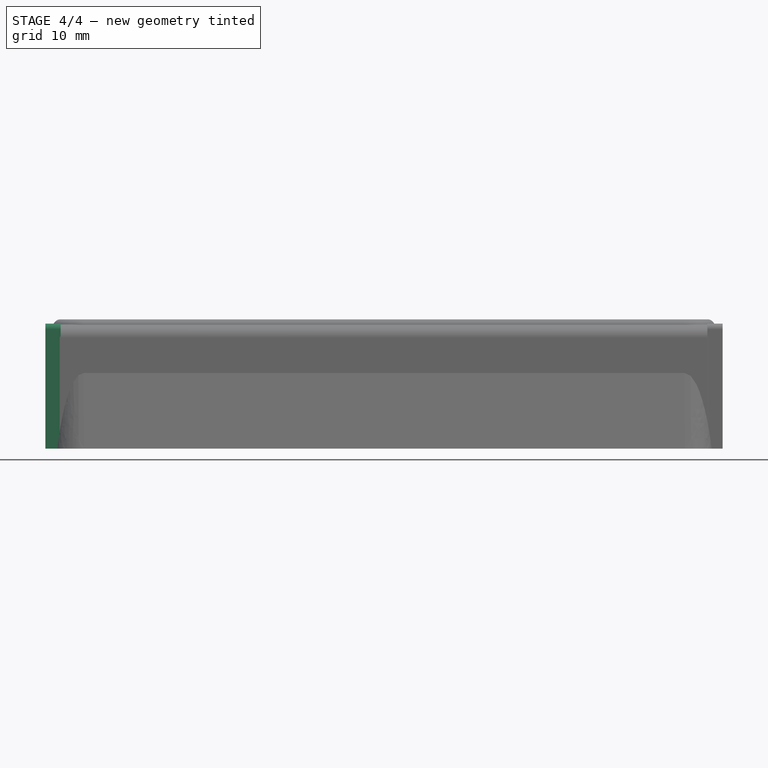
[diagram: stage 4 of 4 — front view after this stage's code; geometry added in this stage tinted green]
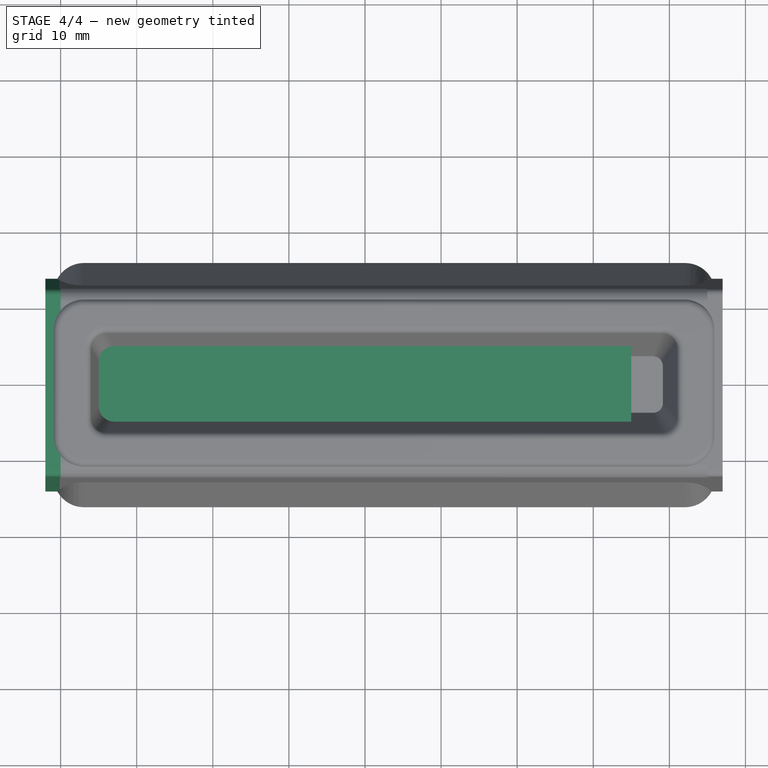
[diagram: stage 4 of 4 — top view after this stage's code; geometry added in this stage tinted green]
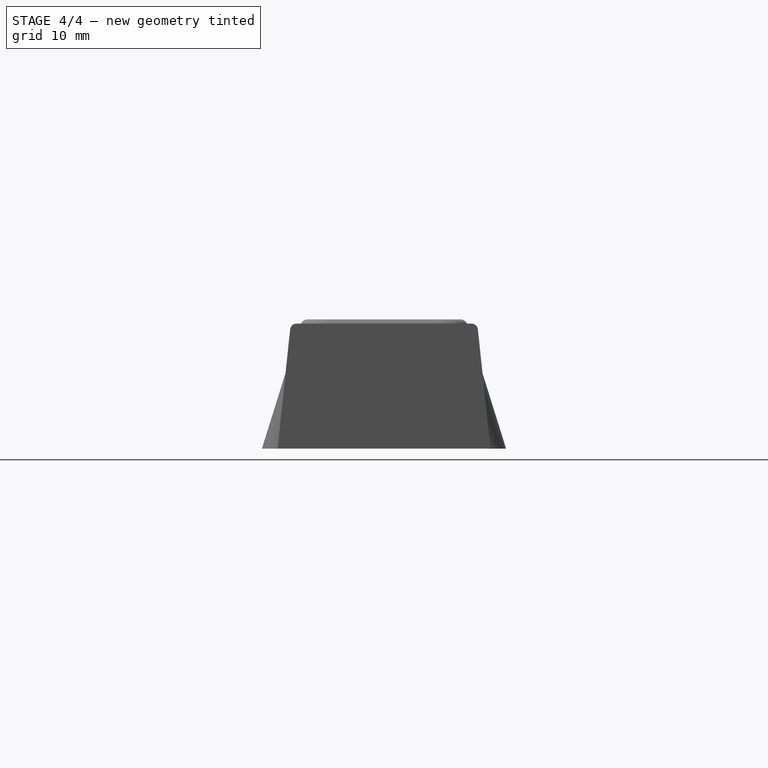
[diagram: stage 4 of 4 — right view after this stage's code; geometry added in this stage tinted green]
FEATURE [Part::Box] Box  label="Cube"
  AttacherType = Attacher::AttachEngine3D
  Height = 10
  Length = 75
  Placement = pos=(0,-5,0) rot=(0,0,1;0rad)
  Width = 10
FEATURE [Part::Compound] Compound
  Links = -> [Clone,Body001,Thickness]
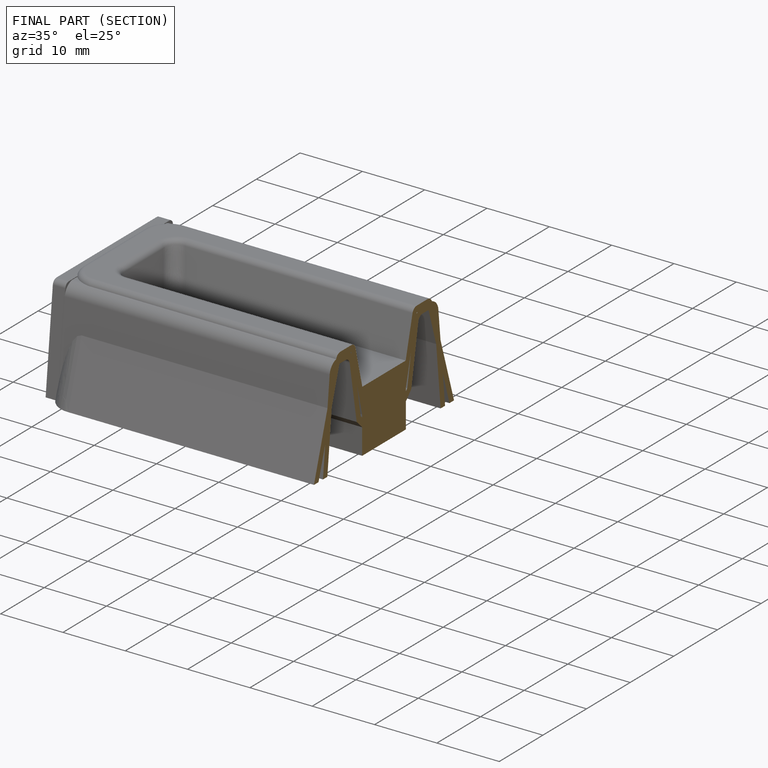
[diagram: finished part — half-section view (interior)]
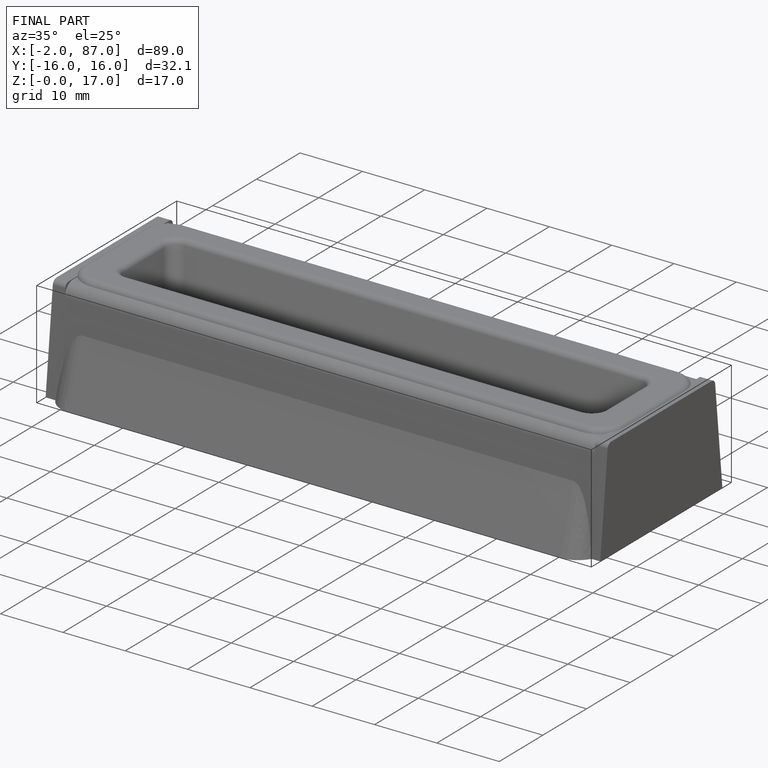
[diagram: finished part — iso view with bounding-box wireframe]
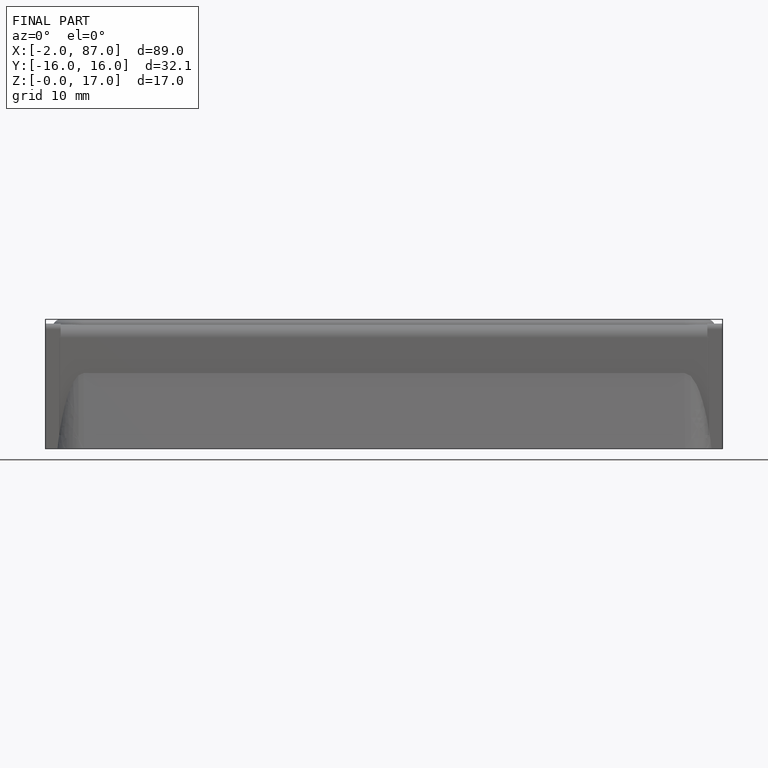
[diagram: finished part — front view with bounding-box wireframe]
